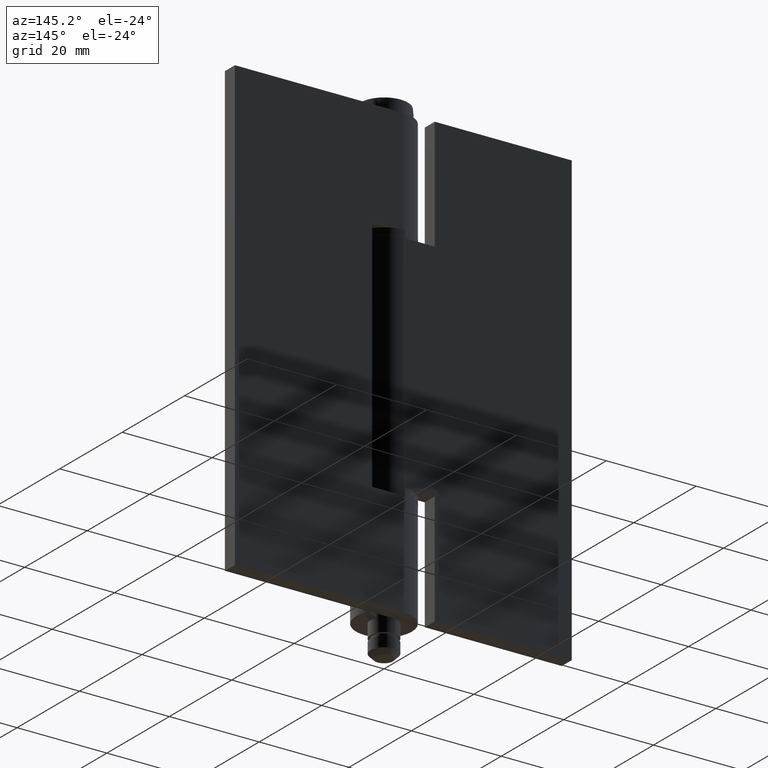
[diagram: clean part render]
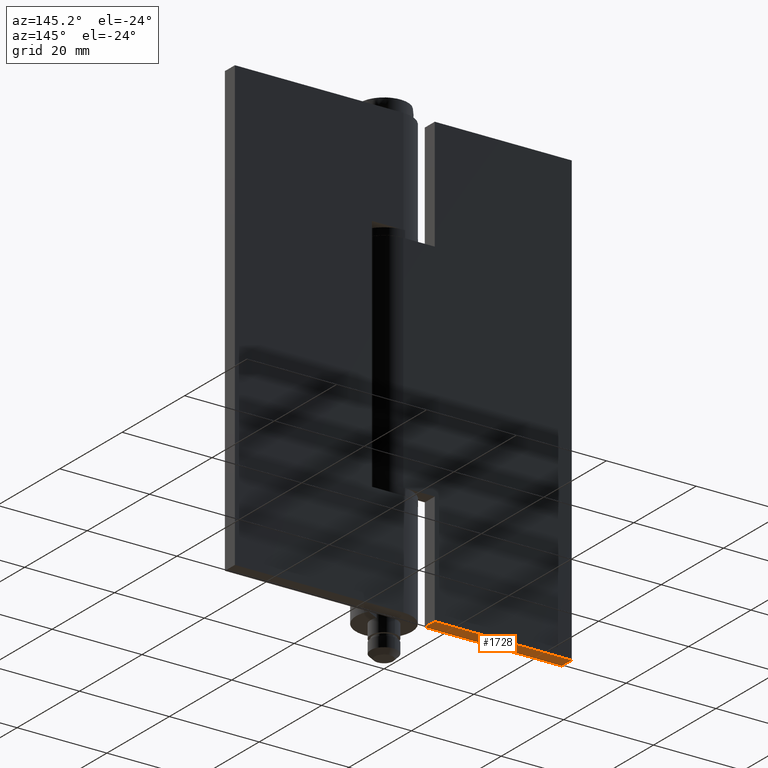
[diagram: same view with one face highlighted and labeled with its STEP entity id]
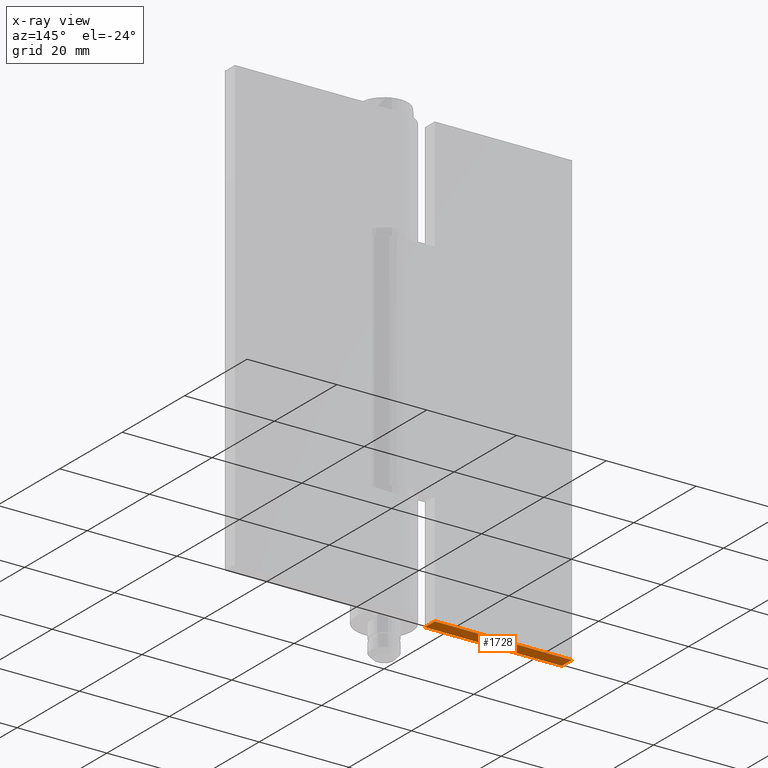
[diagram: x-ray of the same camera — body ghosted, the highlighted face saturated]
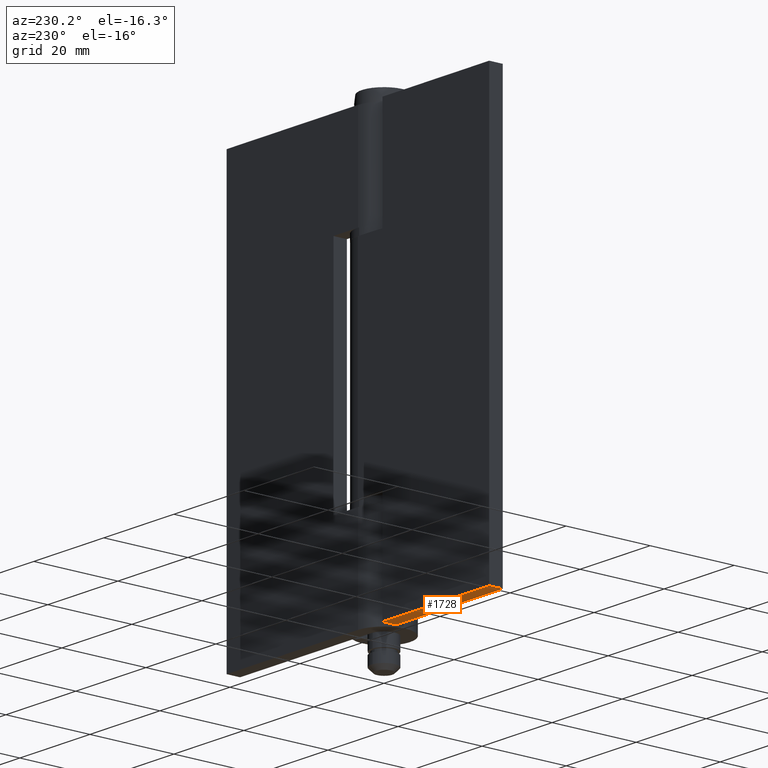
[diagram: same view with one face highlighted and labeled with its STEP entity id]
A machine part, auxiliary view. The second image highlights one B-rep face of the part: STEP entity #1728.
The next image is the same camera in x-ray: the body ghosted, the highlighted face saturated — about 0% of this face is hidden behind the body in this view.
A second angle (auxiliary view) of the same face is appended — the face is thin or edge-on in the first view.
In plain terms, the highlighted face is a freeform B-spline surface patch.
Its self-contained STEP definition (entity closure, byte-faithful):
#1524=CARTESIAN_POINT('',(-7.0,3.0,0.0));
#1525=VERTEX_POINT('',#1524);
#1526=CARTESIAN_POINT('',(-7.0,6.200001000000000,0.0));
#1527=VERTEX_POINT('',#1526);
#1528=CARTESIAN_POINT('',(-7.0,3.0,0.0));
#1529=CARTESIAN_POINT('',(-7.0,6.200001000000000,0.0));
#1530=QUASI_UNIFORM_CURVE('',1,(#1528,#1529),.UNSPECIFIED.,.F.,.U.);
#1531=EDGE_CURVE('',#1525,#1527,#1530,.T.);
#1658=CARTESIAN_POINT('',(-37.500008000000001,3.0,0.0));
#1659=VERTEX_POINT('',#1658);
#1660=CARTESIAN_POINT('',(-37.500008000000001,6.200001000000000,0.0));
#1661=VERTEX_POINT('',#1660);
#1662=CARTESIAN_POINT('',(-37.500008000000001,3.0,0.0));
#1663=CARTESIAN_POINT('',(-37.500008000000001,6.200001000000000,0.0));
#1664=QUASI_UNIFORM_CURVE('',1,(#1662,#1663),.UNSPECIFIED.,.F.,.U.);
#1665=EDGE_CURVE('',#1659,#1661,#1664,.T.);
#1709=CARTESIAN_POINT('',(-39.023483054172821,2.840159967684873,0.0));
#1710=CARTESIAN_POINT('',(-5.476523855061904,2.840159967684873,0.0));
#1711=CARTESIAN_POINT('',(-39.023483054172829,6.359840889263936,0.0));
#1712=CARTESIAN_POINT('',(-5.476523855061904,6.359840889263936,0.0));
#1713=B_SPLINE_SURFACE_WITH_KNOTS('',1,1,((#1709,#1711),(#1710,#1712)),.UNSPECIFIED.,.F.,.F.,.U.,(2,2),(2,2),(0.0,33.546959199110923),(0.0,3.519680921579062),.UNSPECIFIED.);
#1714=CARTESIAN_POINT('',(-37.500008000000001,6.200001000000000,0.0));
#1715=CARTESIAN_POINT('',(-7.0,6.200001000000000,0.0));
#1716=QUASI_UNIFORM_CURVE('',1,(#1714,#1715),.UNSPECIFIED.,.F.,.U.);
#1717=EDGE_CURVE('',#1661,#1527,#1716,.T.);
#1718=ORIENTED_EDGE('',*,*,#1717,.T.);
#1719=ORIENTED_EDGE('',*,*,#1531,.F.);
#1720=CARTESIAN_POINT('',(-7.0,3.0,0.0));
#1721=CARTESIAN_POINT('',(-37.500008000000001,3.0,0.0));
#1722=QUASI_UNIFORM_CURVE('',1,(#1720,#1721),.UNSPECIFIED.,.F.,.U.);
#1723=EDGE_CURVE('',#1525,#1659,#1722,.T.);
#1724=ORIENTED_EDGE('',*,*,#1723,.T.);
#1725=ORIENTED_EDGE('',*,*,#1665,.T.);
#1726=EDGE_LOOP('',(#1718,#1719,#1724,#1725));
#1727=FACE_OUTER_BOUND('',#1726,.T.);
#1728=ADVANCED_FACE('',(#1727),#1713,.F.);